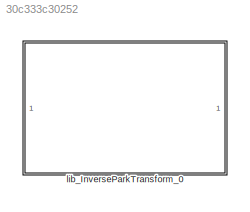
MODEL slx_30c333c30252
KIND library
CONFIG AbsTol = auto
CONFIG EnableMultiTasking = off
CONFIG FixedStep = auto
CONFIG MaxStep = auto
CONFIG MinStep = auto
CONFIG RelTol = 1e-3
CONFIG SampleTimeConstraint = Unconstrained
CONFIG SolverName = VariableStepAuto
CONFIG StartTime = 0.0
CONFIG StopTime = 10.0
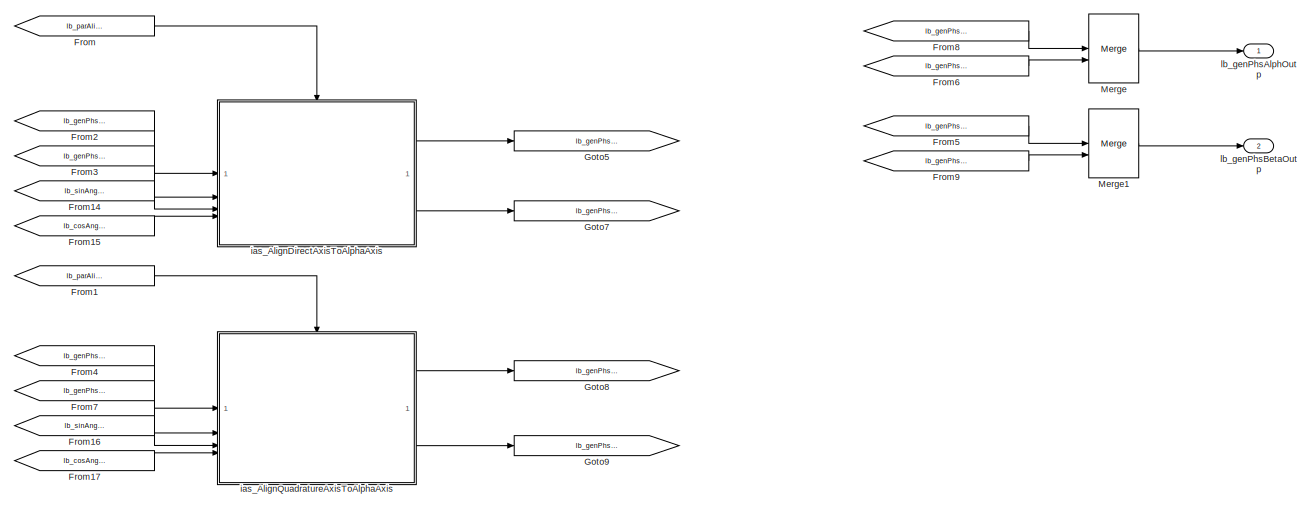
[diagram: lib_InverseParkTransform_0 - part 1/2, right side, full height]
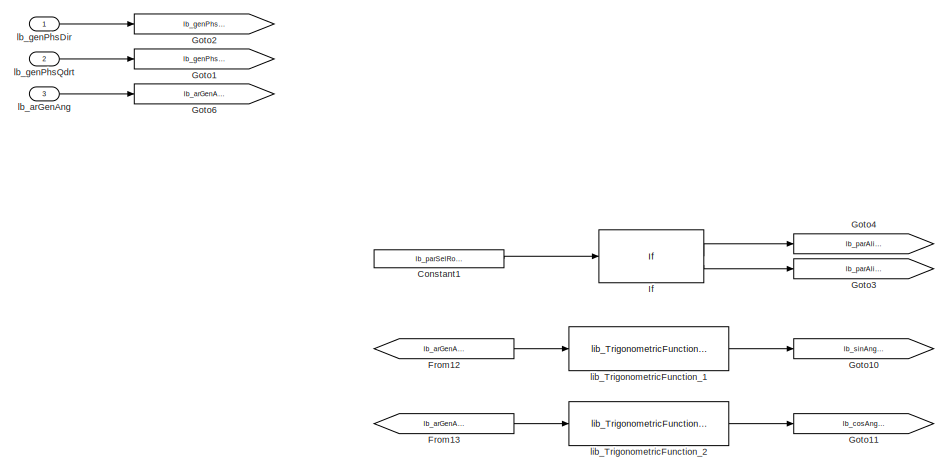
[diagram: lib_InverseParkTransform_0 - part 2/2, left side, full height]
BLOCK [SubSystem] lib_InverseParkTransform_0
  VariantControl = ClarkTransf_MIL_flo
BLOCK [Constant] lib_InverseParkTransform_0/Constant1
  OutDataTypeStr = int8
  Value = lb_parSelRotFrmeAxis
BLOCK [From] lib_InverseParkTransform_0/From
  GotoTag = lb_parAlinDirToAlphAxis
BLOCK [From] lib_InverseParkTransform_0/From1
  GotoTag = lb_parAlinQdrtToAlphAxis
BLOCK [From] lib_InverseParkTransform_0/From12
  GotoTag = lb_arGenAng
BLOCK [From] lib_InverseParkTransform_0/From13
  GotoTag = lb_arGenAng
BLOCK [From] lib_InverseParkTransform_0/From14
  GotoTag = lb_sinAngInpt
BLOCK [From] lib_InverseParkTransform_0/From15
  GotoTag = lb_cosAngInpt
BLOCK [From] lib_InverseParkTransform_0/From16
  GotoTag = lb_sinAngInpt
BLOCK [From] lib_InverseParkTransform_0/From17
  GotoTag = lb_cosAngInpt
BLOCK [From] lib_InverseParkTransform_0/From2
  GotoTag = lb_genPhsDir
BLOCK [From] lib_InverseParkTransform_0/From3
  GotoTag = lb_genPhsQdrt
BLOCK [From] lib_InverseParkTransform_0/From4
  GotoTag = lb_genPhsDir
BLOCK [From] lib_InverseParkTransform_0/From5
  GotoTag = lb_genPhsAlphNotAlinToQdrt
BLOCK [From] lib_InverseParkTransform_0/From6
  GotoTag = lb_genPhsAlphNotAlinToDir
BLOCK [From] lib_InverseParkTransform_0/From7
  GotoTag = lb_genPhsQdrt
BLOCK [From] lib_InverseParkTransform_0/From8
  GotoTag = lb_genPhsAlphAlinToDir
BLOCK [From] lib_InverseParkTransform_0/From9
  GotoTag = lb_genPhsAlphAlinToQdrt
BLOCK [Goto] lib_InverseParkTransform_0/Goto1
  GotoTag = lb_genPhsQdrt
BLOCK [Goto] lib_InverseParkTransform_0/Goto10
  GotoTag = lb_sinAngInpt
BLOCK [Goto] lib_InverseParkTransform_0/Goto11
  GotoTag = lb_cosAngInpt
BLOCK [Goto] lib_InverseParkTransform_0/Goto2
  GotoTag = lb_genPhsDir
BLOCK [Goto] lib_InverseParkTransform_0/Goto3
  GotoTag = lb_parAlinQdrtToAlphAxis
BLOCK [Goto] lib_InverseParkTransform_0/Goto4
  GotoTag = lb_parAlinDirToAlphAxis
BLOCK [Goto] lib_InverseParkTransform_0/Goto5
  GotoTag = lb_genPhsAlphAlinToDir
BLOCK [Goto] lib_InverseParkTransform_0/Goto6
  GotoTag = lb_arGenAng
BLOCK [Goto] lib_InverseParkTransform_0/Goto7
  GotoTag = lb_genPhsAlphNotAlinToQdrt
BLOCK [Goto] lib_InverseParkTransform_0/Goto8
  GotoTag = lb_genPhsAlphNotAlinToDir
BLOCK [Goto] lib_InverseParkTransform_0/Goto9
  GotoTag = lb_genPhsAlphAlinToQdrt
BLOCK [If] lib_InverseParkTransform_0/If
  IfExpression = u1 == 1
BLOCK [Merge] lib_InverseParkTransform_0/Merge
BLOCK [Merge] lib_InverseParkTransform_0/Merge1
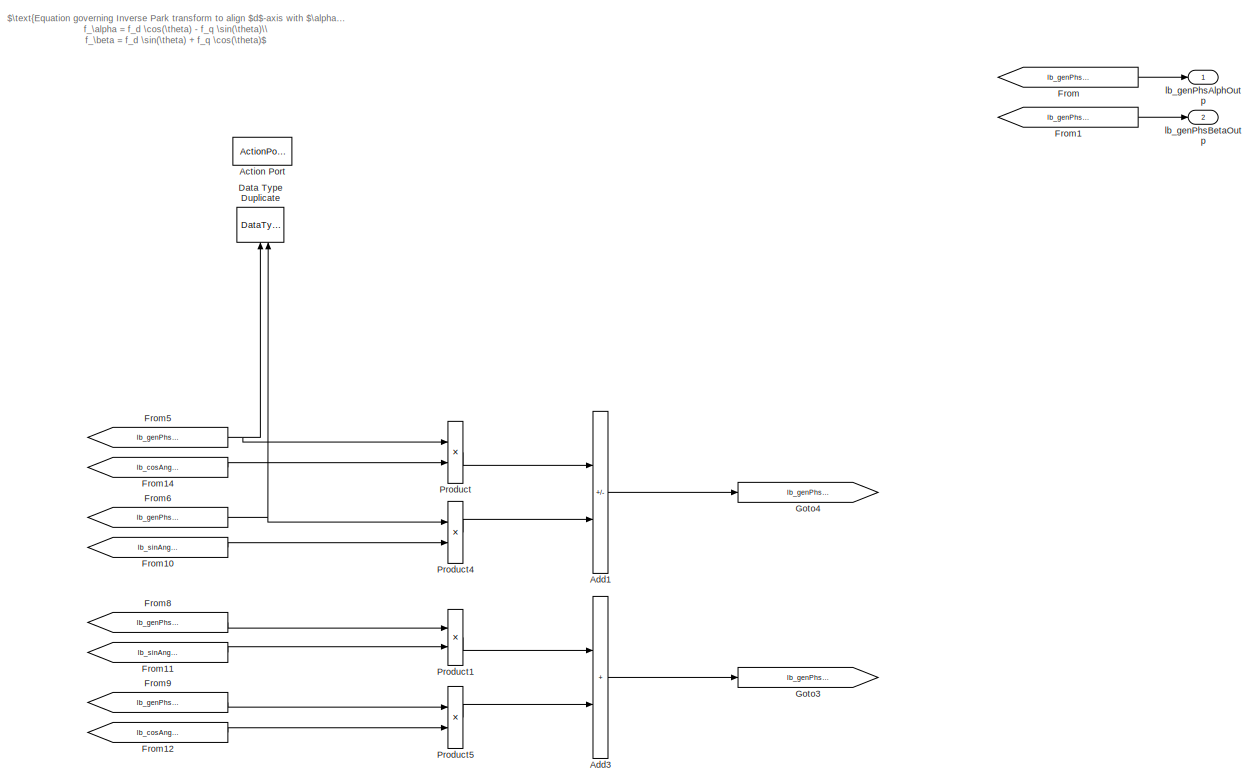
[diagram: lib_InverseParkTransform_0/ias_AlignDirectAxisToAlphaAxis - part 1/2, most of the canvas]
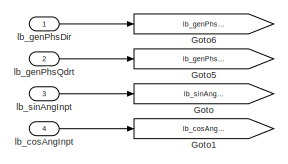
[diagram: lib_InverseParkTransform_0/ias_AlignDirectAxisToAlphaAxis - part 2/2, top left region]
BLOCK [SubSystem] lib_InverseParkTransform_0/ias_AlignDirectAxisToAlphaAxis
  TreatAsAtomicUnit = on
BLOCK [ActionPort] lib_InverseParkTransform_0/ias_AlignDirectAxisToAlphaAxis/Action Port
BLOCK [Sum] lib_InverseParkTransform_0/ias_AlignDirectAxisToAlphaAxis/Add1
  IconShape = rectangular
  Inputs = +-
  OutDataTypeStr = Inherit: Same as first input
BLOCK [Sum] lib_InverseParkTransform_0/ias_AlignDirectAxisToAlphaAxis/Add3
  IconShape = rectangular
  OutDataTypeStr = Inherit: Same as first input
BLOCK [DataTypeDuplicate] lib_InverseParkTransform_0/ias_AlignDirectAxisToAlphaAxis/Data Type Duplicate
  NameLocation = right
BLOCK [From] lib_InverseParkTransform_0/ias_AlignDirectAxisToAlphaAxis/From
  GotoTag = lb_genPhsAlphOutp
BLOCK [From] lib_InverseParkTransform_0/ias_AlignDirectAxisToAlphaAxis/From1
  GotoTag = lb_genPhsBetaOutp
BLOCK [From] lib_InverseParkTransform_0/ias_AlignDirectAxisToAlphaAxis/From10
  GotoTag = lb_sinAngInpt
BLOCK [From] lib_InverseParkTransform_0/ias_AlignDirectAxisToAlphaAxis/From11
  GotoTag = lb_sinAngInpt
BLOCK [From] lib_InverseParkTransform_0/ias_AlignDirectAxisToAlphaAxis/From12
  GotoTag = lb_cosAngInpt
BLOCK [From] lib_InverseParkTransform_0/ias_AlignDirectAxisToAlphaAxis/From14
  GotoTag = lb_cosAngInpt
BLOCK [From] lib_InverseParkTransform_0/ias_AlignDirectAxisToAlphaAxis/From5
  GotoTag = lb_genPhsDir
BLOCK [From] lib_InverseParkTransform_0/ias_AlignDirectAxisToAlphaAxis/From6
  GotoTag = lb_genPhsQdrt
BLOCK [From] lib_InverseParkTransform_0/ias_AlignDirectAxisToAlphaAxis/From8
  GotoTag = lb_genPhsDir
BLOCK [From] lib_InverseParkTransform_0/ias_AlignDirectAxisToAlphaAxis/From9
  GotoTag = lb_genPhsQdrt
BLOCK [Goto] lib_InverseParkTransform_0/ias_AlignDirectAxisToAlphaAxis/Goto
  GotoTag = lb_sinAngInpt
BLOCK [Goto] lib_InverseParkTransform_0/ias_AlignDirectAxisToAlphaAxis/Goto1
  GotoTag = lb_cosAngInpt
BLOCK [Goto] lib_InverseParkTransform_0/ias_AlignDirectAxisToAlphaAxis/Goto3
  GotoTag = lb_genPhsBetaOutp
BLOCK [Goto] lib_InverseParkTransform_0/ias_AlignDirectAxisToAlphaAxis/Goto4
  GotoTag = lb_genPhsAlphOutp
BLOCK [Goto] lib_InverseParkTransform_0/ias_AlignDirectAxisToAlphaAxis/Goto5
  GotoTag = lb_genPhsQdrt
BLOCK [Goto] lib_InverseParkTransform_0/ias_AlignDirectAxisToAlphaAxis/Goto6
  GotoTag = lb_genPhsDir
BLOCK [Product] lib_InverseParkTransform_0/ias_AlignDirectAxisToAlphaAxis/Product
  OutDataTypeStr = Inherit: Same as first input
BLOCK [Product] lib_InverseParkTransform_0/ias_AlignDirectAxisToAlphaAxis/Product1
  OutDataTypeStr = Inherit: Same as first input
BLOCK [Product] lib_InverseParkTransform_0/ias_AlignDirectAxisToAlphaAxis/Product4
  OutDataTypeStr = Inherit: Same as first input
BLOCK [Product] lib_InverseParkTransform_0/ias_AlignDirectAxisToAlphaAxis/Product5
  OutDataTypeStr = Inherit: Same as first input
BLOCK [Inport] lib_InverseParkTransform_0/ias_AlignDirectAxisToAlphaAxis/lb_cosAngInpt
  Port = 4
BLOCK [Outport] lib_InverseParkTransform_0/ias_AlignDirectAxisToAlphaAxis/lb_genPhsAlphOutp
  VectorParamsAs1DForOutWhenUnconnected = off
BLOCK [Outport] lib_InverseParkTransform_0/ias_AlignDirectAxisToAlphaAxis/lb_genPhsBetaOutp
  Port = 2
  VectorParamsAs1DForOutWhenUnconnected = off
BLOCK [Inport] lib_InverseParkTransform_0/ias_AlignDirectAxisToAlphaAxis/lb_genPhsDir
BLOCK [Inport] lib_InverseParkTransform_0/ias_AlignDirectAxisToAlphaAxis/lb_genPhsQdrt
  Port = 2
BLOCK [Inport] lib_InverseParkTransform_0/ias_AlignDirectAxisToAlphaAxis/lb_sinAngInpt
  Port = 3
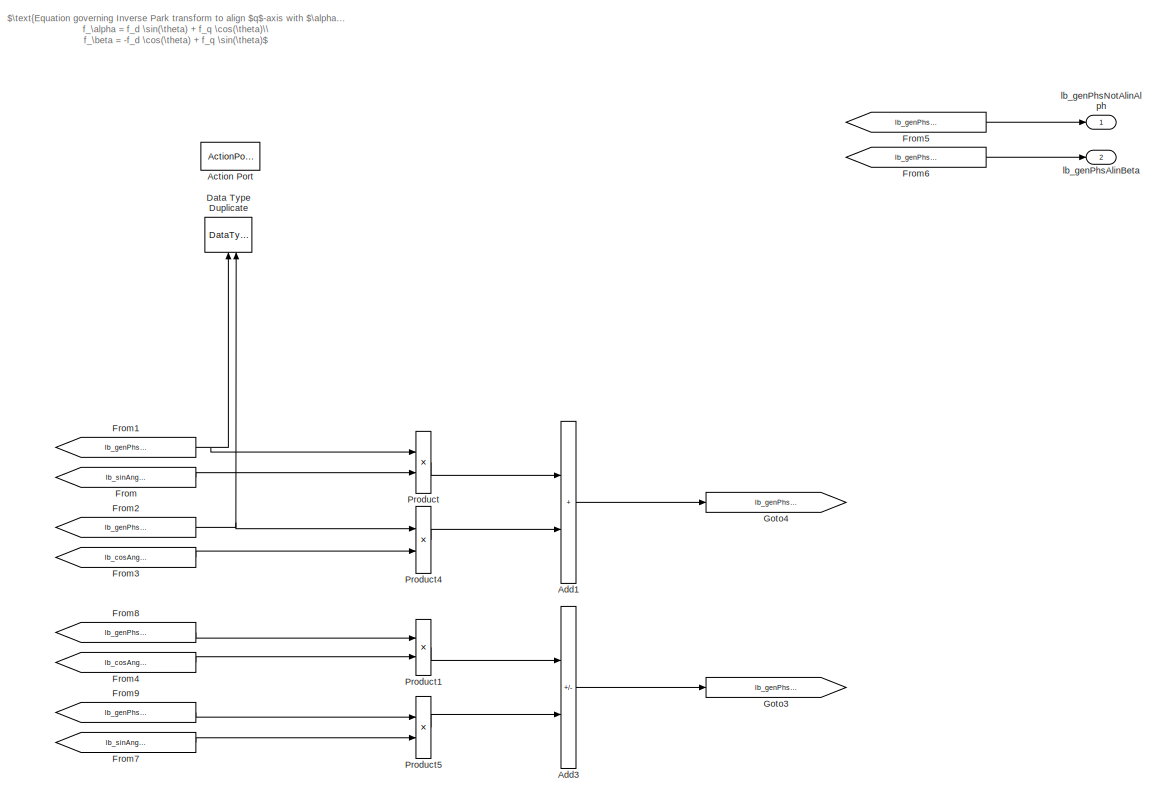
[diagram: lib_InverseParkTransform_0/ias_AlignQuadratureAxisToAlphaAxis - part 1/2, center side, full height]
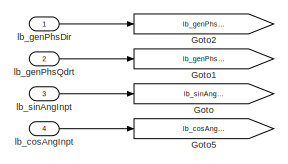
[diagram: lib_InverseParkTransform_0/ias_AlignQuadratureAxisToAlphaAxis - part 2/2, top left region]
BLOCK [SubSystem] lib_InverseParkTransform_0/ias_AlignQuadratureAxisToAlphaAxis
  TreatAsAtomicUnit = on
BLOCK [ActionPort] lib_InverseParkTransform_0/ias_AlignQuadratureAxisToAlphaAxis/Action Port
BLOCK [Sum] lib_InverseParkTransform_0/ias_AlignQuadratureAxisToAlphaAxis/Add1
  IconShape = rectangular
  OutDataTypeStr = Inherit: Same as first input
BLOCK [Sum] lib_InverseParkTransform_0/ias_AlignQuadratureAxisToAlphaAxis/Add3
  IconShape = rectangular
  Inputs = -+
  OutDataTypeStr = Inherit: Same as first input
BLOCK [DataTypeDuplicate] lib_InverseParkTransform_0/ias_AlignQuadratureAxisToAlphaAxis/Data Type Duplicate
  NameLocation = right
BLOCK [From] lib_InverseParkTransform_0/ias_AlignQuadratureAxisToAlphaAxis/From
  GotoTag = lb_sinAngInpt
BLOCK [From] lib_InverseParkTransform_0/ias_AlignQuadratureAxisToAlphaAxis/From1
  GotoTag = lb_genPhsDir
BLOCK [From] lib_InverseParkTransform_0/ias_AlignQuadratureAxisToAlphaAxis/From2
  GotoTag = lb_genPhsQdrt
BLOCK [From] lib_InverseParkTransform_0/ias_AlignQuadratureAxisToAlphaAxis/From3
  GotoTag = lb_cosAngInpt
BLOCK [From] lib_InverseParkTransform_0/ias_AlignQuadratureAxisToAlphaAxis/From4
  GotoTag = lb_cosAngInpt
BLOCK [From] lib_InverseParkTransform_0/ias_AlignQuadratureAxisToAlphaAxis/From5
  GotoTag = lb_genPhsNotAlinAlph
BLOCK [From] lib_InverseParkTransform_0/ias_AlignQuadratureAxisToAlphaAxis/From6
  GotoTag = lb_genPhsAlinBeta
BLOCK [From] lib_InverseParkTransform_0/ias_AlignQuadratureAxisToAlphaAxis/From7
  GotoTag = lb_sinAngInpt
BLOCK [From] lib_InverseParkTransform_0/ias_AlignQuadratureAxisToAlphaAxis/From8
  GotoTag = lb_genPhsDir
BLOCK [From] lib_InverseParkTransform_0/ias_AlignQuadratureAxisToAlphaAxis/From9
  GotoTag = lb_genPhsQdrt
BLOCK [Goto] lib_InverseParkTransform_0/ias_AlignQuadratureAxisToAlphaAxis/Goto
  GotoTag = lb_sinAngInpt
BLOCK [Goto] lib_InverseParkTransform_0/ias_AlignQuadratureAxisToAlphaAxis/Goto1
  GotoTag = lb_genPhsQdrt
BLOCK [Goto] lib_InverseParkTransform_0/ias_AlignQuadratureAxisToAlphaAxis/Goto2
  GotoTag = lb_genPhsDir
BLOCK [Goto] lib_InverseParkTransform_0/ias_AlignQuadratureAxisToAlphaAxis/Goto3
  GotoTag = lb_genPhsAlinBeta
BLOCK [Goto] lib_InverseParkTransform_0/ias_AlignQuadratureAxisToAlphaAxis/Goto4
  GotoTag = lb_genPhsNotAlinAlph
BLOCK [Goto] lib_InverseParkTransform_0/ias_AlignQuadratureAxisToAlphaAxis/Goto5
  GotoTag = lb_cosAngInpt
BLOCK [Product] lib_InverseParkTransform_0/ias_AlignQuadratureAxisToAlphaAxis/Product
  OutDataTypeStr = Inherit: Same as first input
BLOCK [Product] lib_InverseParkTransform_0/ias_AlignQuadratureAxisToAlphaAxis/Product1
  OutDataTypeStr = Inherit: Same as first input
BLOCK [Product] lib_InverseParkTransform_0/ias_AlignQuadratureAxisToAlphaAxis/Product4
  OutDataTypeStr = Inherit: Same as first input
BLOCK [Product] lib_InverseParkTransform_0/ias_AlignQuadratureAxisToAlphaAxis/Product5
  OutDataTypeStr = Inherit: Same as first input
BLOCK [Inport] lib_InverseParkTransform_0/ias_AlignQuadratureAxisToAlphaAxis/lb_cosAngInpt
  Port = 4
BLOCK [Outport] lib_InverseParkTransform_0/ias_AlignQuadratureAxisToAlphaAxis/lb_genPhsAlinBeta
  Port = 2
  VectorParamsAs1DForOutWhenUnconnected = off
BLOCK [Inport] lib_InverseParkTransform_0/ias_AlignQuadratureAxisToAlphaAxis/lb_genPhsDir
BLOCK [Outport] lib_InverseParkTransform_0/ias_AlignQuadratureAxisToAlphaAxis/lb_genPhsNotAlinAlph
  VectorParamsAs1DForOutWhenUnconnected = off
BLOCK [Inport] lib_InverseParkTransform_0/ias_AlignQuadratureAxisToAlphaAxis/lb_genPhsQdrt
  Port = 2
BLOCK [Inport] lib_InverseParkTransform_0/ias_AlignQuadratureAxisToAlphaAxis/lb_sinAngInpt
  Port = 3
BLOCK [Inport] lib_InverseParkTransform_0/lb_arGenAng
  Port = 3
BLOCK [Outport] lib_InverseParkTransform_0/lb_genPhsAlphOutp
  VectorParamsAs1DForOutWhenUnconnected = off
BLOCK [Outport] lib_InverseParkTransform_0/lb_genPhsBetaOutp
  Port = 2
  VectorParamsAs1DForOutWhenUnconnected = off
BLOCK [Inport] lib_InverseParkTransform_0/lb_genPhsDir
BLOCK [Inport] lib_InverseParkTransform_0/lb_genPhsQdrt
  Port = 2
BLOCK [Reference] lib_InverseParkTransform_0/lib_TrigonometricFunction_1  REF=vhit_control_library/lib_TrigonometricFunction_0  (lib defined in slx_b9b276feab74)
  SourceBlock = vhit_control_library/lib_TrigonometricFunction_0
BLOCK [Reference] lib_InverseParkTransform_0/lib_TrigonometricFunction_2  REF=vhit_control_library/lib_TrigonometricFunction_0  (lib defined in slx_b9b276feab74)
  SourceBlock = vhit_control_library/lib_TrigonometricFunction_0
ANNOTATION lib_InverseParkTransform_0/ias_AlignDirectAxisToAlphaAxis: $\text{Equation governing Inverse Park transform to align $d$-axis with $\alpha$-axis:}\\ f_\alpha = f_d \cos(\theta) - f_q \sin(\theta)\\ f_\beta = f_d \sin(\theta) + f_q \cos(\theta)$
ANNOTATION lib_InverseParkTransform_0/ias_AlignQuadratureAxisToAlphaAxis: $\text{Equation governing Inverse Park transform to align $q$-axis with $\alpha$-axis:}\\ f_\alpha = f_d \sin(\theta) + f_q \cos(\theta)\\ f_\beta = -f_d \cos(\theta) + f_q \sin(\theta)$
LINE lib_InverseParkTransform_0/Constant1:1 -> lib_InverseParkTransform_0/If:1
LINE lib_InverseParkTransform_0/From12:1 -> lib_InverseParkTransform_0/lib_TrigonometricFunction_1:1
LINE lib_InverseParkTransform_0/From13:1 -> lib_InverseParkTransform_0/lib_TrigonometricFunction_2:1
LINE lib_InverseParkTransform_0/From14:1 -> lib_InverseParkTransform_0/ias_AlignDirectAxisToAlphaAxis:3
LINE lib_InverseParkTransform_0/From15:1 -> lib_InverseParkTransform_0/ias_AlignDirectAxisToAlphaAxis:4
LINE lib_InverseParkTransform_0/From16:1 -> lib_InverseParkTransform_0/ias_AlignQuadratureAxisToAlphaAxis:3
LINE lib_InverseParkTransform_0/From17:1 -> lib_InverseParkTransform_0/ias_AlignQuadratureAxisToAlphaAxis:4
LINE lib_InverseParkTransform_0/From1:1 -> lib_InverseParkTransform_0/ias_AlignQuadratureAxisToAlphaAxis:ifaction
LINE lib_InverseParkTransform_0/From2:1 -> lib_InverseParkTransform_0/ias_AlignDirectAxisToAlphaAxis:1
LINE lib_InverseParkTransform_0/From3:1 -> lib_InverseParkTransform_0/ias_AlignDirectAxisToAlphaAxis:2
LINE lib_InverseParkTransform_0/From4:1 -> lib_InverseParkTransform_0/ias_AlignQuadratureAxisToAlphaAxis:1
LINE lib_InverseParkTransform_0/From5:1 -> lib_InverseParkTransform_0/Merge1:1
LINE lib_InverseParkTransform_0/From6:1 -> lib_InverseParkTransform_0/Merge:2
LINE lib_InverseParkTransform_0/From7:1 -> lib_InverseParkTransform_0/ias_AlignQuadratureAxisToAlphaAxis:2
LINE lib_InverseParkTransform_0/From8:1 -> lib_InverseParkTransform_0/Merge:1
LINE lib_InverseParkTransform_0/From9:1 -> lib_InverseParkTransform_0/Merge1:2
LINE lib_InverseParkTransform_0/From:1 -> lib_InverseParkTransform_0/ias_AlignDirectAxisToAlphaAxis:ifaction
LINE lib_InverseParkTransform_0/If:1 -> lib_InverseParkTransform_0/Goto4:1
LINE lib_InverseParkTransform_0/If:2 -> lib_InverseParkTransform_0/Goto3:1
LINE lib_InverseParkTransform_0/Merge1:1 -> lib_InverseParkTransform_0/lb_genPhsBetaOutp:1
LINE lib_InverseParkTransform_0/Merge:1 -> lib_InverseParkTransform_0/lb_genPhsAlphOutp:1
LINE lib_InverseParkTransform_0/ias_AlignDirectAxisToAlphaAxis/Add1:1 -> lib_InverseParkTransform_0/ias_AlignDirectAxisToAlphaAxis/Goto4:1
LINE lib_InverseParkTransform_0/ias_AlignDirectAxisToAlphaAxis/Add3:1 -> lib_InverseParkTransform_0/ias_AlignDirectAxisToAlphaAxis/Goto3:1
LINE lib_InverseParkTransform_0/ias_AlignDirectAxisToAlphaAxis/From10:1 -> lib_InverseParkTransform_0/ias_AlignDirectAxisToAlphaAxis/Product4:2
LINE lib_InverseParkTransform_0/ias_AlignDirectAxisToAlphaAxis/From11:1 -> lib_InverseParkTransform_0/ias_AlignDirectAxisToAlphaAxis/Product1:2
LINE lib_InverseParkTransform_0/ias_AlignDirectAxisToAlphaAxis/From12:1 -> lib_InverseParkTransform_0/ias_AlignDirectAxisToAlphaAxis/Product5:2
LINE lib_InverseParkTransform_0/ias_AlignDirectAxisToAlphaAxis/From14:1 -> lib_InverseParkTransform_0/ias_AlignDirectAxisToAlphaAxis/Product:2
LINE lib_InverseParkTransform_0/ias_AlignDirectAxisToAlphaAxis/From1:1 -> lib_InverseParkTransform_0/ias_AlignDirectAxisToAlphaAxis/lb_genPhsBetaOutp:1
NET lib_InverseParkTransform_0/ias_AlignDirectAxisToAlphaAxis/From5:1 -> lib_InverseParkTransform_0/ias_AlignDirectAxisToAlphaAxis/Data Type Duplicate:1, lib_InverseParkTransform_0/ias_AlignDirectAxisToAlphaAxis/Product:1
NET lib_InverseParkTransform_0/ias_AlignDirectAxisToAlphaAxis/From6:1 -> lib_InverseParkTransform_0/ias_AlignDirectAxisToAlphaAxis/Data Type Duplicate:2, lib_InverseParkTransform_0/ias_AlignDirectAxisToAlphaAxis/Product4:1
LINE lib_InverseParkTransform_0/ias_AlignDirectAxisToAlphaAxis/From8:1 -> lib_InverseParkTransform_0/ias_AlignDirectAxisToAlphaAxis/Product1:1
LINE lib_InverseParkTransform_0/ias_AlignDirectAxisToAlphaAxis/From9:1 -> lib_InverseParkTransform_0/ias_AlignDirectAxisToAlphaAxis/Product5:1
LINE lib_InverseParkTransform_0/ias_AlignDirectAxisToAlphaAxis/From:1 -> lib_InverseParkTransform_0/ias_AlignDirectAxisToAlphaAxis/lb_genPhsAlphOutp:1
LINE lib_InverseParkTransform_0/ias_AlignDirectAxisToAlphaAxis/Product1:1 -> lib_InverseParkTransform_0/ias_AlignDirectAxisToAlphaAxis/Add3:1
LINE lib_InverseParkTransform_0/ias_AlignDirectAxisToAlphaAxis/Product4:1 -> lib_InverseParkTransform_0/ias_AlignDirectAxisToAlphaAxis/Add1:2
LINE lib_InverseParkTransform_0/ias_AlignDirectAxisToAlphaAxis/Product5:1 -> lib_InverseParkTransform_0/ias_AlignDirectAxisToAlphaAxis/Add3:2
LINE lib_InverseParkTransform_0/ias_AlignDirectAxisToAlphaAxis/Product:1 -> lib_InverseParkTransform_0/ias_AlignDirectAxisToAlphaAxis/Add1:1
LINE lib_InverseParkTransform_0/ias_AlignDirectAxisToAlphaAxis/lb_cosAngInpt:1 -> lib_InverseParkTransform_0/ias_AlignDirectAxisToAlphaAxis/Goto1:1
LINE lib_InverseParkTransform_0/ias_AlignDirectAxisToAlphaAxis/lb_genPhsDir:1 -> lib_InverseParkTransform_0/ias_AlignDirectAxisToAlphaAxis/Goto6:1
LINE lib_InverseParkTransform_0/ias_AlignDirectAxisToAlphaAxis/lb_genPhsQdrt:1 -> lib_InverseParkTransform_0/ias_AlignDirectAxisToAlphaAxis/Goto5:1
LINE lib_InverseParkTransform_0/ias_AlignDirectAxisToAlphaAxis/lb_sinAngInpt:1 -> lib_InverseParkTransform_0/ias_AlignDirectAxisToAlphaAxis/Goto:1
LINE lib_InverseParkTransform_0/ias_AlignDirectAxisToAlphaAxis:1 -> lib_InverseParkTransform_0/Goto5:1
LINE lib_InverseParkTransform_0/ias_AlignDirectAxisToAlphaAxis:2 -> lib_InverseParkTransform_0/Goto7:1
LINE lib_InverseParkTransform_0/ias_AlignQuadratureAxisToAlphaAxis/Add1:1 -> lib_InverseParkTransform_0/ias_AlignQuadratureAxisToAlphaAxis/Goto4:1
LINE lib_InverseParkTransform_0/ias_AlignQuadratureAxisToAlphaAxis/Add3:1 -> lib_InverseParkTransform_0/ias_AlignQuadratureAxisToAlphaAxis/Goto3:1
NET lib_InverseParkTransform_0/ias_AlignQuadratureAxisToAlphaAxis/From1:1 -> lib_InverseParkTransform_0/ias_AlignQuadratureAxisToAlphaAxis/Data Type Duplicate:1, lib_InverseParkTransform_0/ias_AlignQuadratureAxisToAlphaAxis/Product:1
NET lib_InverseParkTransform_0/ias_AlignQuadratureAxisToAlphaAxis/From2:1 -> lib_InverseParkTransform_0/ias_AlignQuadratureAxisToAlphaAxis/Data Type Duplicate:2, lib_InverseParkTransform_0/ias_AlignQuadratureAxisToAlphaAxis/Product4:1
LINE lib_InverseParkTransform_0/ias_AlignQuadratureAxisToAlphaAxis/From3:1 -> lib_InverseParkTransform_0/ias_AlignQuadratureAxisToAlphaAxis/Product4:2
LINE lib_InverseParkTransform_0/ias_AlignQuadratureAxisToAlphaAxis/From4:1 -> lib_InverseParkTransform_0/ias_AlignQuadratureAxisToAlphaAxis/Product1:2
LINE lib_InverseParkTransform_0/ias_AlignQuadratureAxisToAlphaAxis/From5:1 -> lib_InverseParkTransform_0/ias_AlignQuadratureAxisToAlphaAxis/lb_genPhsNotAlinAlph:1
LINE lib_InverseParkTransform_0/ias_AlignQuadratureAxisToAlphaAxis/From6:1 -> lib_InverseParkTransform_0/ias_AlignQuadratureAxisToAlphaAxis/lb_genPhsAlinBeta:1
LINE lib_InverseParkTransform_0/ias_AlignQuadratureAxisToAlphaAxis/From7:1 -> lib_InverseParkTransform_0/ias_AlignQuadratureAxisToAlphaAxis/Product5:2
LINE lib_InverseParkTransform_0/ias_AlignQuadratureAxisToAlphaAxis/From8:1 -> lib_InverseParkTransform_0/ias_AlignQuadratureAxisToAlphaAxis/Product1:1
LINE lib_InverseParkTransform_0/ias_AlignQuadratureAxisToAlphaAxis/From9:1 -> lib_InverseParkTransform_0/ias_AlignQuadratureAxisToAlphaAxis/Product5:1
LINE lib_InverseParkTransform_0/ias_AlignQuadratureAxisToAlphaAxis/From:1 -> lib_InverseParkTransform_0/ias_AlignQuadratureAxisToAlphaAxis/Product:2
LINE lib_InverseParkTransform_0/ias_AlignQuadratureAxisToAlphaAxis/Product1:1 -> lib_InverseParkTransform_0/ias_AlignQuadratureAxisToAlphaAxis/Add3:1
LINE lib_InverseParkTransform_0/ias_AlignQuadratureAxisToAlphaAxis/Product4:1 -> lib_InverseParkTransform_0/ias_AlignQuadratureAxisToAlphaAxis/Add1:2
LINE lib_InverseParkTransform_0/ias_AlignQuadratureAxisToAlphaAxis/Product5:1 -> lib_InverseParkTransform_0/ias_AlignQuadratureAxisToAlphaAxis/Add3:2
LINE lib_InverseParkTransform_0/ias_AlignQuadratureAxisToAlphaAxis/Product:1 -> lib_InverseParkTransform_0/ias_AlignQuadratureAxisToAlphaAxis/Add1:1
LINE lib_InverseParkTransform_0/ias_AlignQuadratureAxisToAlphaAxis/lb_cosAngInpt:1 -> lib_InverseParkTransform_0/ias_AlignQuadratureAxisToAlphaAxis/Goto5:1
LINE lib_InverseParkTransform_0/ias_AlignQuadratureAxisToAlphaAxis/lb_genPhsDir:1 -> lib_InverseParkTransform_0/ias_AlignQuadratureAxisToAlphaAxis/Goto2:1
LINE lib_InverseParkTransform_0/ias_AlignQuadratureAxisToAlphaAxis/lb_genPhsQdrt:1 -> lib_InverseParkTransform_0/ias_AlignQuadratureAxisToAlphaAxis/Goto1:1
LINE lib_InverseParkTransform_0/ias_AlignQuadratureAxisToAlphaAxis/lb_sinAngInpt:1 -> lib_InverseParkTransform_0/ias_AlignQuadratureAxisToAlphaAxis/Goto:1
LINE lib_InverseParkTransform_0/ias_AlignQuadratureAxisToAlphaAxis:1 -> lib_InverseParkTransform_0/Goto8:1
LINE lib_InverseParkTransform_0/ias_AlignQuadratureAxisToAlphaAxis:2 -> lib_InverseParkTransform_0/Goto9:1
LINE lib_InverseParkTransform_0/lb_arGenAng:1 -> lib_InverseParkTransform_0/Goto6:1
LINE lib_InverseParkTransform_0/lb_genPhsDir:1 -> lib_InverseParkTransform_0/Goto2:1
LINE lib_InverseParkTransform_0/lb_genPhsQdrt:1 -> lib_InverseParkTransform_0/Goto1:1
LINE lib_InverseParkTransform_0/lib_TrigonometricFunction_1:1 -> lib_InverseParkTransform_0/Goto10:1
LINE lib_InverseParkTransform_0/lib_TrigonometricFunction_2:1 -> lib_InverseParkTransform_0/Goto11:1
note: NET lines group one-source signal fan-out (src -> all destinations, sorted); 1:1 wires keep LINE
